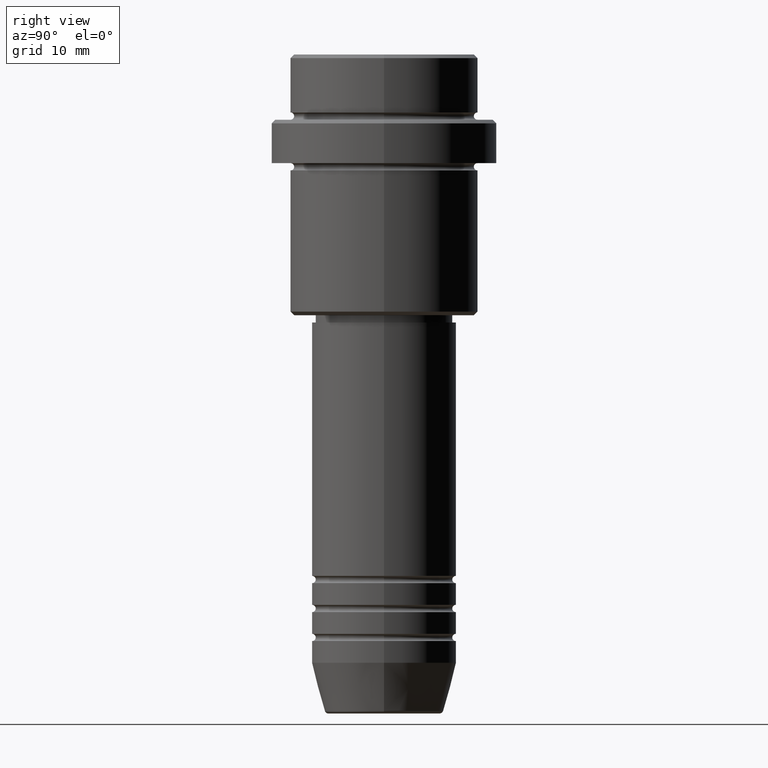
[diagram: clean part render]
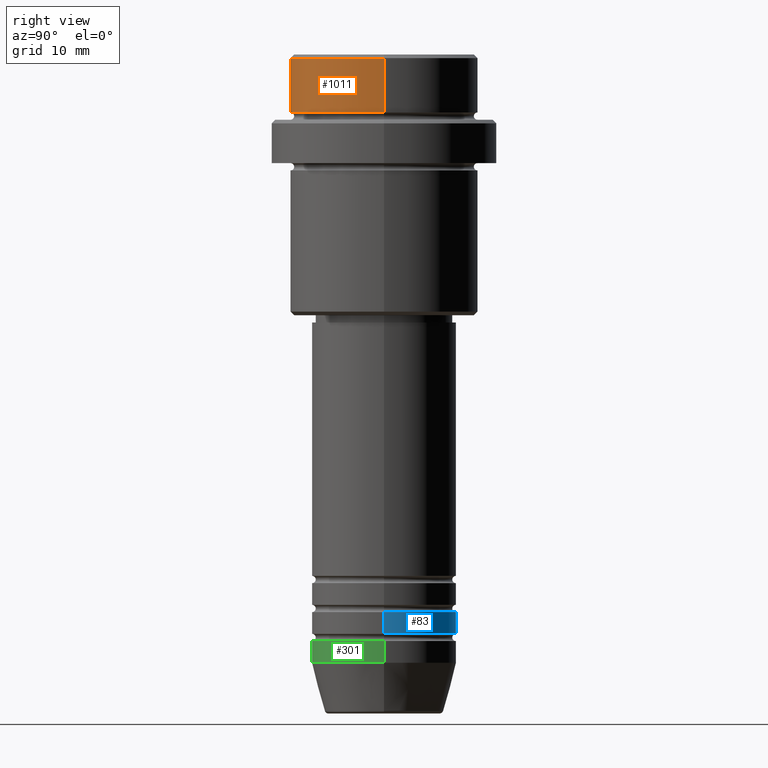
[diagram: same view with three faces highlighted in distinct colors, each labeled with its STEP entity id]
A machine part, right view with three faces highlighted in distinct colors.
Their STEP definitions:

[orange] entity #1011 — the highlighted cylindrical surface (partial cylindrical patch) has radius 13 mm, axis along (-0, -0, 1).
#45 = CARTESIAN_POINT ( 'NONE',  ( 0.000000000000000000, 0.000000000000000000, -7.999999999999998224 ) ) ;
#73 = AXIS2_PLACEMENT_3D ( 'NONE', #158, #603, #726 ) ;
#99 = DIRECTION ( 'NONE',  ( 1.000000000000000000, 0.000000000000000000, 0.000000000000000000 ) ) ;
#154 = EDGE_CURVE ( 'NONE', #333, #1374, #1101, .T. ) ;
#158 = CARTESIAN_POINT ( 'NONE',  ( 0.000000000000000000, 0.000000000000000000, -0.4999999999999900080 ) ) ;
#200 = AXIS2_PLACEMENT_3D ( 'NONE', #731, #1396, #99 ) ;
#206 = ORIENTED_EDGE ( 'NONE', *, *, #154, .T. ) ;
#275 = ORIENTED_EDGE ( 'NONE', *, *, #870, .T. ) ;
#302 = CYLINDRICAL_SURFACE ( 'NONE', #200, 12.99999999999999822 ) ;
#303 = CARTESIAN_POINT ( 'NONE',  ( -12.99999999999999822, 1.592040838891558898E-15, -7.999999999999998224 ) ) ;
#330 = DIRECTION ( 'NONE',  ( -0.000000000000000000, -0.000000000000000000, 1.000000000000000000 ) ) ;
#333 = VERTEX_POINT ( 'NONE', #399 ) ;
#399 = CARTESIAN_POINT ( 'NONE',  ( 12.99999999999999822, 0.000000000000000000, -7.999999999999998224 ) ) ;
#406 = FACE_OUTER_BOUND ( 'NONE', #819, .T. ) ;
#438 = CARTESIAN_POINT ( 'NONE',  ( -12.99999999999999822, 1.592040838891558898E-15, 0.000000000000000000 ) ) ;
#513 = ORIENTED_EDGE ( 'NONE', *, *, #1098, .F. ) ;
#537 = CIRCLE ( 'NONE', #73, 12.99999999999999822 ) ;
#578 = CARTESIAN_POINT ( 'NONE',  ( 12.99999999999999822, 0.000000000000000000, 0.000000000000000000 ) ) ;
#583 = VECTOR ( 'NONE', #330, 1000.000000000000000 ) ;
#603 = DIRECTION ( 'NONE',  ( 0.000000000000000000, 0.000000000000000000, -1.000000000000000000 ) ) ;
#608 = ORIENTED_EDGE ( 'NONE', *, *, #1371, .T. ) ;
#613 = CIRCLE ( 'NONE', #1156, 12.99999999999999822 ) ;
#705 = DIRECTION ( 'NONE',  ( -0.000000000000000000, -0.000000000000000000, 1.000000000000000000 ) ) ;
#726 = DIRECTION ( 'NONE',  ( 1.000000000000000000, 0.000000000000000000, 0.000000000000000000 ) ) ;
#731 = CARTESIAN_POINT ( 'NONE',  ( 0.000000000000000000, 0.000000000000000000, 0.000000000000000000 ) ) ;
#777 = LINE ( 'NONE', #438, #583 ) ;
#786 = DIRECTION ( 'NONE',  ( -0.000000000000000000, -0.000000000000000000, 1.000000000000000000 ) ) ;
#818 = VECTOR ( 'NONE', #786, 1000.000000000000000 ) ;
#819 = EDGE_LOOP ( 'NONE', ( #513, #275, #206, #608 ) ) ;
#870 = EDGE_CURVE ( 'NONE', #1375, #333, #613, .T. ) ;
#1011 = ADVANCED_FACE ( 'NONE', ( #406 ), #302, .T. ) ;
#1059 = CARTESIAN_POINT ( 'NONE',  ( -12.99999999999999822, 1.592040838891558898E-15, -0.4999999999999900080 ) ) ;
#1098 = EDGE_CURVE ( 'NONE', #1375, #1281, #777, .T. ) ;
#1101 = LINE ( 'NONE', #578, #818 ) ;
#1142 = DIRECTION ( 'NONE',  ( 1.000000000000000000, 0.000000000000000000, 0.000000000000000000 ) ) ;
#1156 = AXIS2_PLACEMENT_3D ( 'NONE', #45, #705, #1142 ) ;
#1277 = CARTESIAN_POINT ( 'NONE',  ( 12.99999999999999822, 0.000000000000000000, -0.4999999999999900080 ) ) ;
#1281 = VERTEX_POINT ( 'NONE', #1059 ) ;
#1371 = EDGE_CURVE ( 'NONE', #1374, #1281, #537, .T. ) ;
#1374 = VERTEX_POINT ( 'NONE', #1277 ) ;
#1375 = VERTEX_POINT ( 'NONE', #303 ) ;
#1396 = DIRECTION ( 'NONE',  ( -0.000000000000000000, -0.000000000000000000, 1.000000000000000000 ) ) ;

[blue] entity #83 — the highlighted cylindrical surface (partial cylindrical patch) has radius 10 mm, axis along (-0, -0, 1).
#81 = VECTOR ( 'NONE', #217, 1000.000000000000000 ) ;
#83 = ADVANCED_FACE ( 'NONE', ( #1182 ), #1286, .T. ) ;
#98 = EDGE_CURVE ( 'NONE', #1147, #334, #699, .T. ) ;
#104 = DIRECTION ( 'NONE',  ( 1.000000000000000000, 0.000000000000000000, 0.000000000000000000 ) ) ;
#124 = EDGE_CURVE ( 'NONE', #334, #692, #879, .T. ) ;
#136 = EDGE_LOOP ( 'NONE', ( #1351, #238, #1038, #663 ) ) ;
#204 = CARTESIAN_POINT ( 'NONE',  ( 0.000000000000000000, 0.000000000000000000, -79.99999999999985789 ) ) ;
#217 = DIRECTION ( 'NONE',  ( -0.000000000000000000, -0.000000000000000000, 1.000000000000000000 ) ) ;
#238 = ORIENTED_EDGE ( 'NONE', *, *, #124, .T. ) ;
#312 = DIRECTION ( 'NONE',  ( -0.000000000000000000, -0.000000000000000000, 1.000000000000000000 ) ) ;
#334 = VERTEX_POINT ( 'NONE', #1035 ) ;
#343 = CARTESIAN_POINT ( 'NONE',  ( 10.00000000000000000, 0.000000000000000000, -79.99999999999985789 ) ) ;
#425 = CARTESIAN_POINT ( 'NONE',  ( 0.000000000000000000, 0.000000000000000000, 0.000000000000000000 ) ) ;
#563 = CARTESIAN_POINT ( 'NONE',  ( -10.00000000000000000, 1.224646799147353256E-15, -76.99999999999987210 ) ) ;
#584 = AXIS2_PLACEMENT_3D ( 'NONE', #204, #1087, #1279 ) ;
#663 = ORIENTED_EDGE ( 'NONE', *, *, #955, .F. ) ;
#692 = VERTEX_POINT ( 'NONE', #563 ) ;
#699 = CIRCLE ( 'NONE', #584, 10.00000000000000000 ) ;
#704 = DIRECTION ( 'NONE',  ( -0.000000000000000000, -0.000000000000000000, 1.000000000000000000 ) ) ;
#746 = AXIS2_PLACEMENT_3D ( 'NONE', #839, #704, #1386 ) ;
#765 = CARTESIAN_POINT ( 'NONE',  ( -10.00000000000000000, 1.224646799147353256E-15, 0.000000000000000000 ) ) ;
#817 = CIRCLE ( 'NONE', #746, 10.00000000000000000 ) ;
#839 = CARTESIAN_POINT ( 'NONE',  ( 0.000000000000000000, 0.000000000000000000, -76.99999999999987210 ) ) ;
#879 = LINE ( 'NONE', #765, #81 ) ;
#955 = EDGE_CURVE ( 'NONE', #1147, #1335, #1283, .T. ) ;
#978 = AXIS2_PLACEMENT_3D ( 'NONE', #425, #312, #104 ) ;
#1035 = CARTESIAN_POINT ( 'NONE',  ( -10.00000000000000000, 1.224646799147353256E-15, -79.99999999999985789 ) ) ;
#1038 = ORIENTED_EDGE ( 'NONE', *, *, #1189, .F. ) ;
#1066 = CARTESIAN_POINT ( 'NONE',  ( 10.00000000000000000, 0.000000000000000000, -76.99999999999987210 ) ) ;
#1087 = DIRECTION ( 'NONE',  ( -0.000000000000000000, -0.000000000000000000, 1.000000000000000000 ) ) ;
#1147 = VERTEX_POINT ( 'NONE', #343 ) ;
#1182 = FACE_OUTER_BOUND ( 'NONE', #136, .T. ) ;
#1189 = EDGE_CURVE ( 'NONE', #1335, #692, #817, .T. ) ;
#1279 = DIRECTION ( 'NONE',  ( 1.000000000000000000, 0.000000000000000000, 0.000000000000000000 ) ) ;
#1283 = LINE ( 'NONE', #1300, #1408 ) ;
#1286 = CYLINDRICAL_SURFACE ( 'NONE', #978, 10.00000000000000000 ) ;
#1300 = CARTESIAN_POINT ( 'NONE',  ( 10.00000000000000000, 0.000000000000000000, 0.000000000000000000 ) ) ;
#1335 = VERTEX_POINT ( 'NONE', #1066 ) ;
#1351 = ORIENTED_EDGE ( 'NONE', *, *, #98, .T. ) ;
#1386 = DIRECTION ( 'NONE',  ( 1.000000000000000000, 0.000000000000000000, 0.000000000000000000 ) ) ;
#1388 = DIRECTION ( 'NONE',  ( -0.000000000000000000, -0.000000000000000000, 1.000000000000000000 ) ) ;
#1408 = VECTOR ( 'NONE', #1388, 1000.000000000000000 ) ;

[green] entity #301 — the highlighted cylindrical surface (partial cylindrical patch) has radius 10 mm, axis along (-0, -0, 1).
#51 = DIRECTION ( 'NONE',  ( 1.000000000000000000, 0.000000000000000000, 0.000000000000000000 ) ) ;
#61 = CARTESIAN_POINT ( 'NONE',  ( 0.000000000000000000, 0.000000000000000000, 0.000000000000000000 ) ) ;
#115 = CARTESIAN_POINT ( 'NONE',  ( 10.00000000000000000, 0.000000000000000000, 0.000000000000000000 ) ) ;
#116 = EDGE_CURVE ( 'NONE', #880, #1253, #1268, .T. ) ;
#150 = ORIENTED_EDGE ( 'NONE', *, *, #740, .F. ) ;
#169 = CARTESIAN_POINT ( 'NONE',  ( -10.00000000000000000, 1.224646799147353256E-15, -83.99999999999998579 ) ) ;
#179 = DIRECTION ( 'NONE',  ( 1.000000000000000000, 0.000000000000000000, 0.000000000000000000 ) ) ;
#240 = DIRECTION ( 'NONE',  ( -0.000000000000000000, -0.000000000000000000, 1.000000000000000000 ) ) ;
#284 = DIRECTION ( 'NONE',  ( -0.000000000000000000, -0.000000000000000000, 1.000000000000000000 ) ) ;
#301 = ADVANCED_FACE ( 'NONE', ( #481 ), #1378, .T. ) ;
#323 = AXIS2_PLACEMENT_3D ( 'NONE', #829, #284, #51 ) ;
#363 = ORIENTED_EDGE ( 'NONE', *, *, #1053, .T. ) ;
#395 = ORIENTED_EDGE ( 'NONE', *, *, #785, .F. ) ;
#408 = AXIS2_PLACEMENT_3D ( 'NONE', #61, #706, #179 ) ;
#473 = VECTOR ( 'NONE', #1130, 1000.000000000000000 ) ;
#481 = FACE_OUTER_BOUND ( 'NONE', #1232, .T. ) ;
#505 = VERTEX_POINT ( 'NONE', #644 ) ;
#612 = CARTESIAN_POINT ( 'NONE',  ( -10.00000000000000000, 1.224646799147353256E-15, 0.000000000000000000 ) ) ;
#644 = CARTESIAN_POINT ( 'NONE',  ( 10.00000000000000000, 0.000000000000000000, -80.99999999999998579 ) ) ;
#657 = AXIS2_PLACEMENT_3D ( 'NONE', #1190, #1080, #985 ) ;
#706 = DIRECTION ( 'NONE',  ( -0.000000000000000000, -0.000000000000000000, 1.000000000000000000 ) ) ;
#740 = EDGE_CURVE ( 'NONE', #997, #505, #751, .T. ) ;
#751 = CIRCLE ( 'NONE', #323, 10.00000000000000000 ) ;
#761 = LINE ( 'NONE', #115, #866 ) ;
#785 = EDGE_CURVE ( 'NONE', #880, #997, #922, .T. ) ;
#805 = CARTESIAN_POINT ( 'NONE',  ( 10.00000000000000000, 0.000000000000000000, -83.99999999999998579 ) ) ;
#829 = CARTESIAN_POINT ( 'NONE',  ( 0.000000000000000000, 0.000000000000000000, -80.99999999999998579 ) ) ;
#866 = VECTOR ( 'NONE', #240, 1000.000000000000000 ) ;
#880 = VERTEX_POINT ( 'NONE', #169 ) ;
#922 = LINE ( 'NONE', #612, #473 ) ;
#985 = DIRECTION ( 'NONE',  ( 1.000000000000000000, 0.000000000000000000, 0.000000000000000000 ) ) ;
#997 = VERTEX_POINT ( 'NONE', #1376 ) ;
#1053 = EDGE_CURVE ( 'NONE', #1253, #505, #761, .T. ) ;
#1080 = DIRECTION ( 'NONE',  ( -0.000000000000000000, -0.000000000000000000, 1.000000000000000000 ) ) ;
#1130 = DIRECTION ( 'NONE',  ( -0.000000000000000000, -0.000000000000000000, 1.000000000000000000 ) ) ;
#1190 = CARTESIAN_POINT ( 'NONE',  ( 0.000000000000000000, 0.000000000000000000, -83.99999999999998579 ) ) ;
#1232 = EDGE_LOOP ( 'NONE', ( #395, #1295, #363, #150 ) ) ;
#1253 = VERTEX_POINT ( 'NONE', #805 ) ;
#1268 = CIRCLE ( 'NONE', #657, 10.00000000000000000 ) ;
#1295 = ORIENTED_EDGE ( 'NONE', *, *, #116, .T. ) ;
#1376 = CARTESIAN_POINT ( 'NONE',  ( -10.00000000000000000, 1.224646799147353256E-15, -80.99999999999998579 ) ) ;
#1378 = CYLINDRICAL_SURFACE ( 'NONE', #408, 10.00000000000000000 ) ;